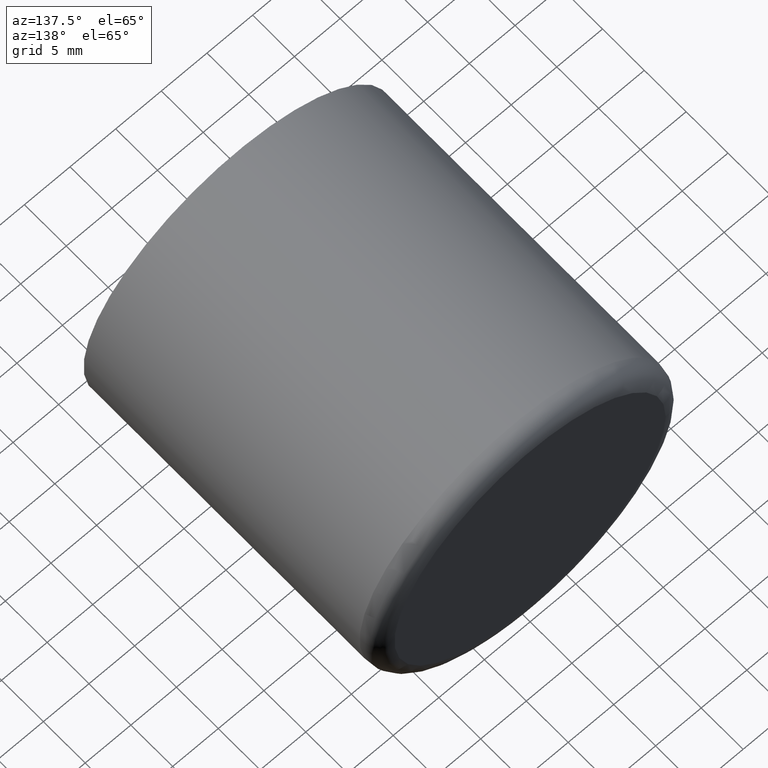
[diagram: clean part render]
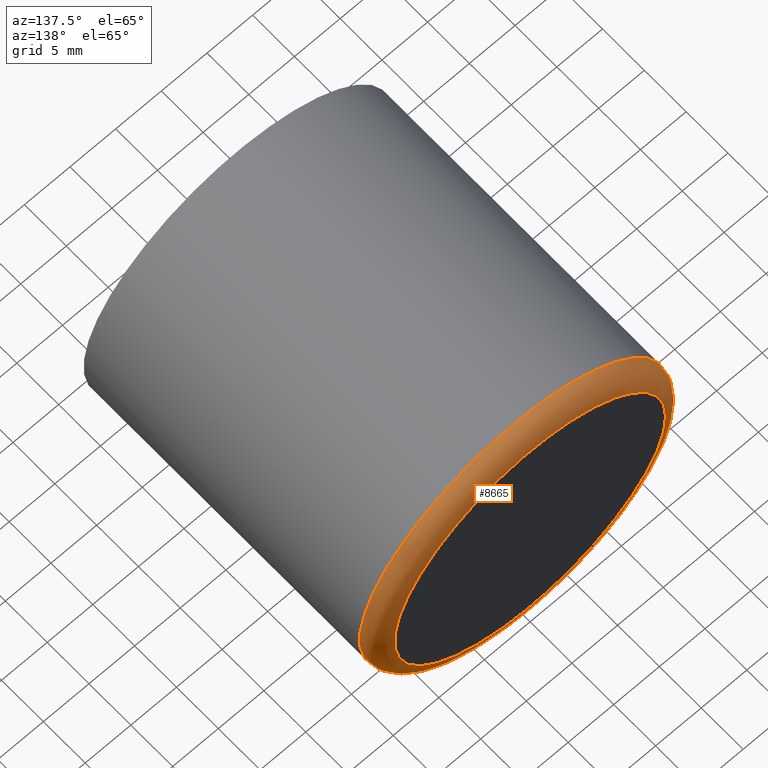
[diagram: same view with one face highlighted and labeled with its STEP entity id]
A machine part, auxiliary view. The second image highlights one B-rep face of the part: STEP entity #8665.
In plain terms, the highlighted toroidal blend (fillet) surface has major radius 14.85 mm and minor (blend) radius 2 mm.
Its self-contained STEP definition (entity closure, byte-faithful):
#24 = DIRECTION ( 'NONE',  ( -7.248013002707695800E-018, 1.000000000000000000, -0.0000000000000000000 ) ) ;
#84 = EDGE_CURVE ( 'NONE', #12783, #12783, #3499, .T. ) ;
#373 = FACE_OUTER_BOUND ( 'NONE', #12547, .T. ) ;
#1716 = CARTESIAN_POINT ( 'NONE',  ( -14.84999999999999800, 35.00000000000000700, 0.0000000000000000000 ) ) ;
#3296 = AXIS2_PLACEMENT_3D ( 'NONE', #6228, #24, #9515 ) ;
#3499 = CIRCLE ( 'NONE', #10031, 16.84999999999999800 ) ;
#4951 = EDGE_CURVE ( 'NONE', #5085, #5085, #5349, .T. ) ;
#4959 = DIRECTION ( 'NONE',  ( -7.248013002707695800E-018, 1.000000000000000000, -0.0000000000000000000 ) ) ;
#5085 = VERTEX_POINT ( 'NONE', #1716 ) ;
#5291 = DIRECTION ( 'NONE',  ( -1.000000000000000000, 0.0000000000000000000, 0.0000000000000000000 ) ) ;
#5349 = CIRCLE ( 'NONE', #3296, 14.84999999999999800 ) ;
#5921 = CARTESIAN_POINT ( 'NONE',  ( 0.0000000000000000000, 33.00000000000000000, 0.0000000000000000000 ) ) ;
#6228 = CARTESIAN_POINT ( 'NONE',  ( -2.536804550947693900E-016, 35.00000000000000700, 0.0000000000000000000 ) ) ;
#6259 = ORIENTED_EDGE ( 'NONE', *, *, #4951, .F. ) ;
#6295 = TOROIDAL_SURFACE ( 'NONE', #10799, 14.84999999999999800, 2.000000000000003600 ) ;
#6531 = EDGE_LOOP ( 'NONE', ( #6673 ) ) ;
#6673 = ORIENTED_EDGE ( 'NONE', *, *, #84, .T. ) ;
#7402 = DIRECTION ( 'NONE',  ( -7.248013002707695800E-018, 1.000000000000000000, -0.0000000000000000000 ) ) ;
#7743 = CARTESIAN_POINT ( 'NONE',  ( -16.84999999999999800, 33.00000000000000000, 0.0000000000000000000 ) ) ;
#8665 = ADVANCED_FACE ( 'NONE', ( #373, #11225 ), #6295, .T. ) ;
#9094 = DIRECTION ( 'NONE',  ( -1.000000000000000000, -7.248013002707695800E-018, 0.0000000000000000000 ) ) ;
#9515 = DIRECTION ( 'NONE',  ( -1.000000000000000000, 0.0000000000000000000, 0.0000000000000000000 ) ) ;
#10031 = AXIS2_PLACEMENT_3D ( 'NONE', #13559, #7402, #5291 ) ;
#10799 = AXIS2_PLACEMENT_3D ( 'NONE', #5921, #4959, #9094 ) ;
#11225 = FACE_OUTER_BOUND ( 'NONE', #6531, .T. ) ;
#12547 = EDGE_LOOP ( 'NONE', ( #6259 ) ) ;
#12783 = VERTEX_POINT ( 'NONE', #7743 ) ;
#13559 = CARTESIAN_POINT ( 'NONE',  ( -2.391844290893539200E-016, 33.00000000000000000, 0.0000000000000000000 ) ) ;